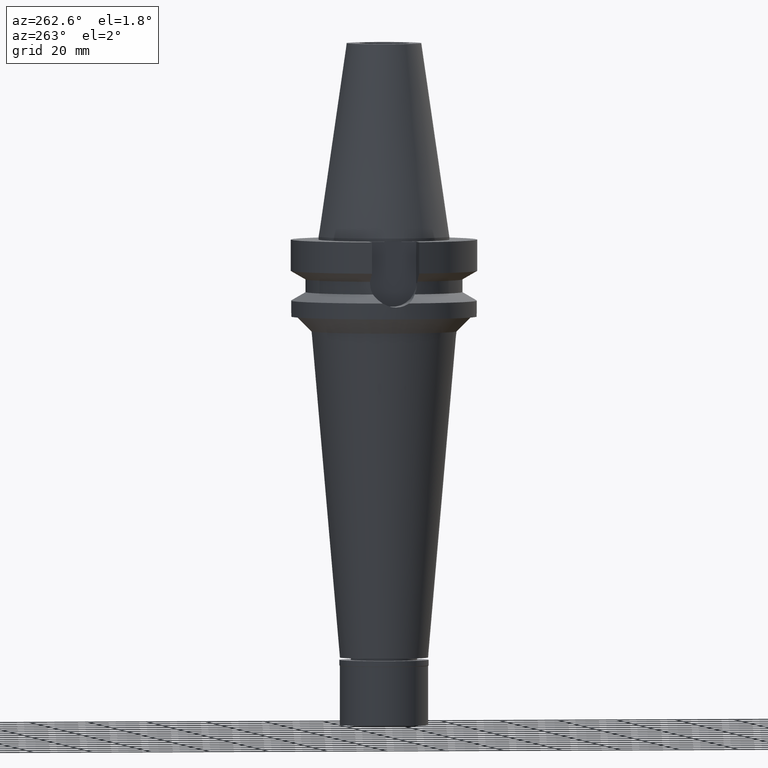
[diagram: clean part render]
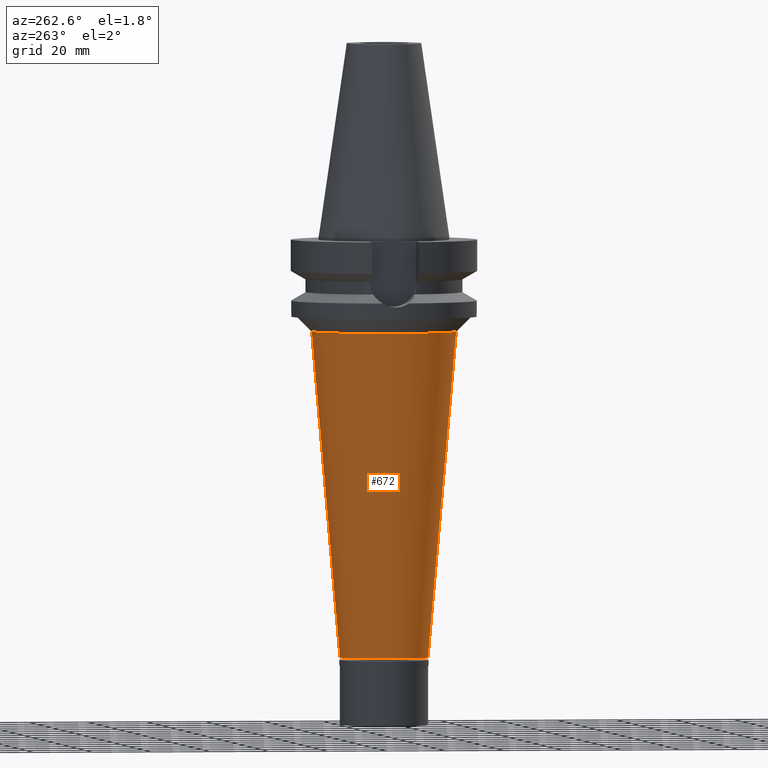
[diagram: same view with one face highlighted and labeled with its STEP entity id]
A machine part, auxiliary view. The second image highlights one B-rep face of the part: STEP entity #672.
In plain terms, the highlighted conical surface has half-angle 5 deg.
Its self-contained STEP definition (entity closure, byte-faithful):
#6 = EDGE_CURVE ( 'NONE', #1977, #2519, #1792, .T. ) ;
#125 = VECTOR ( 'NONE', #528, 1000.000000000000000 ) ;
#159 = CARTESIAN_POINT ( 'NONE',  ( 0.0000000000000000000, -24.64125072056000221, -32.00000000000000000 ) ) ;
#172 = DIRECTION ( 'NONE',  ( 0.0000000000000000000, 0.08715574274767391716, -0.9961946980917442129 ) ) ;
#200 = CARTESIAN_POINT ( 'NONE',  ( 0.0000000000000000000, 24.64125072056000221, -32.00000000000000000 ) ) ;
#241 = EDGE_CURVE ( 'NONE', #1527, #2361, #732, .T. ) ;
#246 = EDGE_LOOP ( 'NONE', ( #2240, #2127, #727, #2992 ) ) ;
#256 = DIRECTION ( 'NONE',  ( 0.0000000000000000000, -1.000000000000000000, 0.0000000000000000000 ) ) ;
#528 = DIRECTION ( 'NONE',  ( 0.0000000000000000000, -0.08715574274767391716, -0.9961946980917442129 ) ) ;
#672 = ADVANCED_FACE ( 'NONE', ( #2880 ), #3124, .T. ) ;
#727 = ORIENTED_EDGE ( 'NONE', *, *, #6, .T. ) ;
#732 = CIRCLE ( 'NONE', #1239, 15.00000000000000000 ) ;
#768 = LINE ( 'NONE', #2434, #125 ) ;
#823 = AXIS2_PLACEMENT_3D ( 'NONE', #2431, #1446, #256 ) ;
#929 = VECTOR ( 'NONE', #172, 1000.000000000000000 ) ;
#1072 = EDGE_CURVE ( 'NONE', #2519, #1527, #768, .T. ) ;
#1239 = AXIS2_PLACEMENT_3D ( 'NONE', #1757, #1345, #2477 ) ;
#1339 = CARTESIAN_POINT ( 'NONE',  ( 0.0000000000000000000, -15.00000000000000000, -142.1999999999999886 ) ) ;
#1345 = DIRECTION ( 'NONE',  ( 0.0000000000000000000, 0.0000000000000000000, 1.000000000000000000 ) ) ;
#1395 = LINE ( 'NONE', #159, #929 ) ;
#1446 = DIRECTION ( 'NONE',  ( 0.0000000000000000000, 0.0000000000000000000, -1.000000000000000000 ) ) ;
#1527 = VERTEX_POINT ( 'NONE', #1644 ) ;
#1549 = AXIS2_PLACEMENT_3D ( 'NONE', #1674, #1876, #2894 ) ;
#1644 = CARTESIAN_POINT ( 'NONE',  ( 0.0000000000000000000, 15.00000000000000000, -142.1999999999999886 ) ) ;
#1674 = CARTESIAN_POINT ( 'NONE',  ( 0.0000000000000000000, 0.0000000000000000000, -87.09999999999999432 ) ) ;
#1757 = CARTESIAN_POINT ( 'NONE',  ( 0.0000000000000000000, 0.0000000000000000000, -142.1999999999999886 ) ) ;
#1792 = CIRCLE ( 'NONE', #823, 24.64125072056000221 ) ;
#1876 = DIRECTION ( 'NONE',  ( 0.0000000000000000000, 0.0000000000000000000, 1.000000000000000000 ) ) ;
#1881 = CARTESIAN_POINT ( 'NONE',  ( 0.0000000000000000000, -24.64125072056000221, -32.00000000000000000 ) ) ;
#1977 = VERTEX_POINT ( 'NONE', #1881 ) ;
#2017 = EDGE_CURVE ( 'NONE', #1977, #2361, #1395, .T. ) ;
#2127 = ORIENTED_EDGE ( 'NONE', *, *, #2017, .F. ) ;
#2240 = ORIENTED_EDGE ( 'NONE', *, *, #241, .T. ) ;
#2361 = VERTEX_POINT ( 'NONE', #1339 ) ;
#2431 = CARTESIAN_POINT ( 'NONE',  ( 0.0000000000000000000, 0.0000000000000000000, -32.00000000000000000 ) ) ;
#2434 = CARTESIAN_POINT ( 'NONE',  ( 0.0000000000000000000, 24.64125072056000221, -32.00000000000000000 ) ) ;
#2477 = DIRECTION ( 'NONE',  ( 0.0000000000000000000, 1.000000000000000000, 0.0000000000000000000 ) ) ;
#2519 = VERTEX_POINT ( 'NONE', #200 ) ;
#2880 = FACE_OUTER_BOUND ( 'NONE', #246, .T. ) ;
#2894 = DIRECTION ( 'NONE',  ( 0.0000000000000000000, 1.000000000000000000, 0.0000000000000000000 ) ) ;
#2992 = ORIENTED_EDGE ( 'NONE', *, *, #1072, .T. ) ;
#3124 = CONICAL_SURFACE ( 'NONE', #1549, 19.82062536028000110, 0.08726646259969973729 ) ;